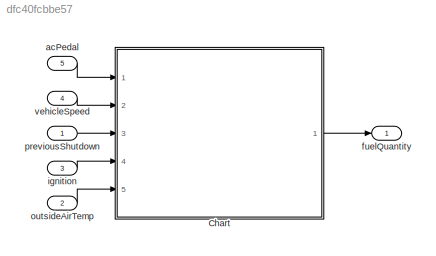
MODEL slx_dfc40fcbbe57
KIND model
CONFIG AbsTol = auto
CONFIG EnableMultiTasking = off
CONFIG FixedStep = auto
CONFIG MaxStep = auto
CONFIG MinStep = auto
CONFIG RelTol = 1e-3
CONFIG SampleTimeConstraint = Unconstrained
CONFIG Solver = FixedStepAuto
CONFIG SolverName = FixedStepAuto
CONFIG StartTime = 0.0
CONFIG StopTime = 100
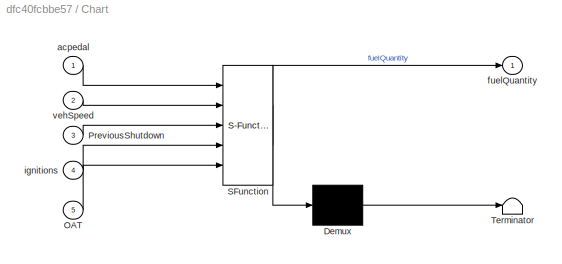
BLOCK [SubSystem] Chart
  BlockKeywords = __PRM__SERIALIZED__DATA__:Stateflow Chart,Stateflow Diagram
  ErrorFcn = Stateflow.Translate.translate
  PermitHierarchicalResolution = ExplicitOnly
  Ports = [5, 1]
  RequestExecContextInheritance = off
  SFBlockType = Chart
  TreatAsAtomicUnit = on
BLOCK [Demux] Chart/ Demux 
  Outputs = 1
  Ports = [1, 1]
BLOCK [S-Function] Chart/ SFunction 
  EnableBusSupport = on
  FunctionName = sf_sfun
  PortCounts = [5 2]
  Ports = [5, 2]
  SFcnIsStateOwnerBlock = off
  SFunctionDeploymentMode = off
  Tag = Stateflow S-Function req18 3
BLOCK [Terminator] Chart/ Terminator 
BLOCK [Inport] Chart/OAT
  IconDisplay = Port number
  Port = 5
BLOCK [Inport] Chart/PreviousShutdown
  IconDisplay = Port number
  Port = 3
BLOCK [Inport] Chart/acpedal
  IconDisplay = Port number
BLOCK [Outport] Chart/fuelQuantity
  IconDisplay = Port number
BLOCK [Inport] Chart/ignitions
  IconDisplay = Port number
  Port = 4
BLOCK [Inport] Chart/vehSpeed
  IconDisplay = Port number
  Port = 2
BLOCK [Inport] acPedal
  IconDisplay = Port number
  Port = 5
BLOCK [Outport] fuelQuantity
  IconDisplay = Port number
BLOCK [Inport] ignition
  IconDisplay = Port number
  Port = 3
BLOCK [Inport] outsideAirTemp
  IconDisplay = Port number
  Port = 2
BLOCK [Inport] previousShutdown
  IconDisplay = Port number
BLOCK [Inport] vehicleSpeed
  IconDisplay = Port number
  Port = 4
LINE Chart:1 -> fuelQuantity:1
LINE acPedal:1 -> Chart:1
LINE ignition:1 -> Chart:4
LINE outsideAirTemp:1 -> Chart:5
LINE previousShutdown:1 -> Chart:3
LINE vehicleSpeed:1 -> Chart:2
CHART Chart states=12 transitions=17
  STATE_LABEL 'total'
  STATE_LABEL 'vehstate'
  STATE_LABEL 'running\nvehState=2;'
  STATE_LABEL 'init'
  STATE_LABEL 'off\nvehState=0;'
  STATE_LABEL 'on\nvehState=1;'
  STATE_LABEL '{vehState=0;}'
  STATE_LABEL '[ignitions==1&&vehSpeed>0]'
  STATE_LABEL '[~(ignitions==1&&vehSpeed>0)]'
  STATE_LABEL '[ignitions==0&&vehSpeed==0]'
  STATE_LABEL '[~(ignitions==0&&vehSpeed==0)]'
  STATE_LABEL '[~(ignitions==1&&vehSpeed==0)]'
  STATE_LABEL '[ignitions==1&&vehSpeed==0]'
  STATE_LABEL 'fuelQuantity\n'
  STATE_LABEL 'running\nfuelQuantity=acpedal;'
  STATE_LABEL 'default'
  STATE_LABEL 'coldStart\nfuelQuantity=80;'
  STATE_LABEL 'warmStart\nfuelQuantity=50;'
  STATE_LABEL 'hotstart\nfuelQuantity=50;'
  STATE_LABEL '[vehState==2]'
  STATE_LABEL '[vehState~=2]'
  STATE_LABEL '[PreviousShutdown>5&&OAT<20&&vehState==0]'
  STATE_LABEL '[~(PreviousShutdown>5&&OAT<20&&vehState==0)]'
  STATE_LABEL '[PreviousShutdown<=5 && OAT<20 && vehState==1]'
  STATE_LABEL '[~(PreviousShutdown<=5 && OAT<20 &&vehState==1)]'
  STATE_LABEL '[OAT>20 && (vehState==1||vehState==0)]'
  STATE_LABEL '[~(OAT>20 && (vehState==1||vehState==0))]'
  STATE_LABEL 'vehstate'
  STATE_LABEL 'running\nvehState=2;'
  STATE_LABEL 'init'
  STATE_LABEL 'off\nvehState=0;'
  STATE_LABEL 'on\nvehState=1;'
  STATE_LABEL '{vehState=0;}'
  STATE_LABEL '[ignitions==1&&vehSpeed>0]'
  STATE_LABEL '[~(ignitions==1&&vehSpeed>0)]'
  STATE_LABEL '[ignitions==0&&vehSpeed==0]'
  STATE_LABEL '[~(ignitions==0&&vehSpeed==0)]'
  STATE_LABEL '[~(ignitions==1&&vehSpeed==0)]'
  STATE_LABEL '[ignitions==1&&vehSpeed==0]'
  STATE_LABEL 'running\nvehState=2;'
